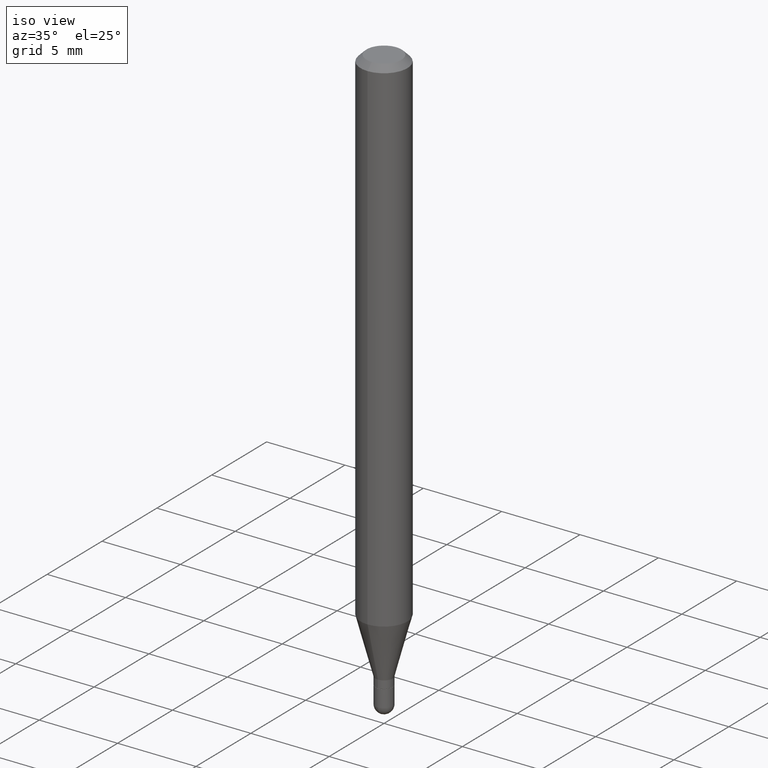
[diagram: clean part render]
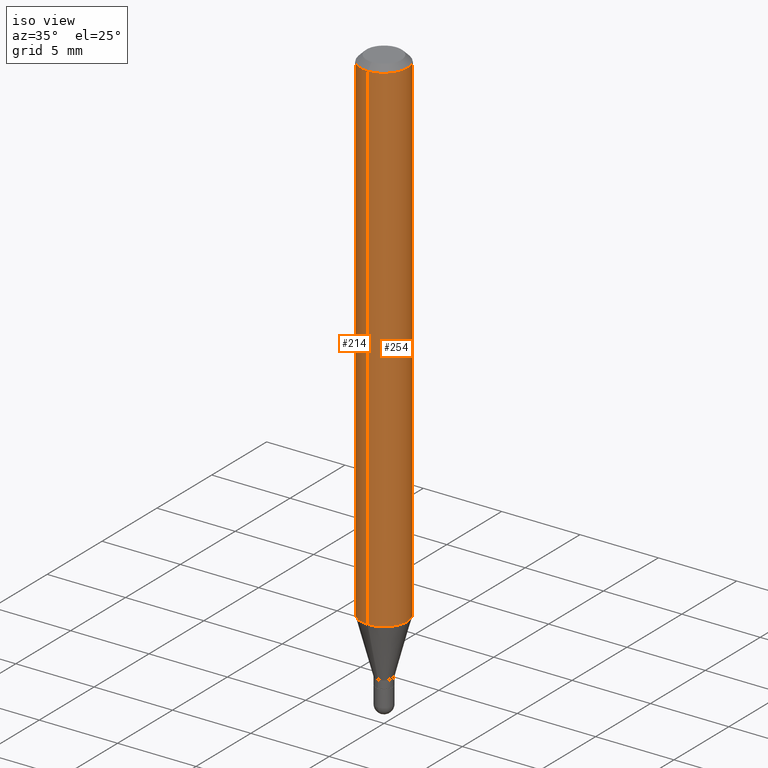
[diagram: same view with one multi-face feature highlighted, each face labeled with its STEP entity id]
A machine part, iso view. The highlighted faces form ONE feature: a constant-radius fillet chain: 2 tangent blend faces with common blend radius 1.4999 mm. The faces share edges in the B-rep.
Their STEP definitions:
[1] entity #214 (Cylinder):
#2 = DIRECTION ( 'NONE',  ( -6.982962677686265922E-15, -1.000000000000000000, 4.626330217890369336E-15 ) ) ;
#5 = DIRECTION ( 'NONE',  ( -6.982962677686265922E-15, -1.000000000000000000, 3.505890868245046092E-15 ) ) ;
#61 = EDGE_CURVE ( 'NONE', #104, #486, #247, .T. ) ;
#92 = AXIS2_PLACEMENT_3D ( 'NONE', #320, #398, #384 ) ;
#101 = EDGE_LOOP ( 'NONE', ( #245, #336, #184, #106 ) ) ;
#104 = VERTEX_POINT ( 'NONE', #356 ) ;
#106 = ORIENTED_EDGE ( 'NONE', *, *, #61, .F. ) ;
#108 = VERTEX_POINT ( 'NONE', #283 ) ;
#118 = CARTESIAN_POINT ( 'NONE',  ( 3.667410319511325366E-31, -5.238357471538720427E-17, -0.01500000000000009139 ) ) ;
#146 = AXIS2_PLACEMENT_3D ( 'NONE', #118, #326, #5 ) ;
#162 = CARTESIAN_POINT ( 'NONE',  ( 3.108793557569111606E-29, -4.440455400674538017E-15, -1.271521299796924964 ) ) ;
#168 = CARTESIAN_POINT ( 'NONE',  ( -4.123439461173739834E-16, -0.05904999999999999832, 2.062166724629063638E-16 ) ) ;
#178 = DIRECTION ( 'NONE',  ( -2.444940213007535554E-29, 3.492238314359125882E-15, 1.000000000000000000 ) ) ;
#184 = ORIENTED_EDGE ( 'NONE', *, *, #246, .T. ) ;
#201 = CARTESIAN_POINT ( 'NONE',  ( -4.123439461173429713E-16, -0.05905000000000445309, -1.271521299796924742 ) ) ;
#214 = ADVANCED_FACE ( 'NONE', ( #435 ), #395, .T. ) ;
#232 = VECTOR ( 'NONE', #178, 39.37007874015748143 ) ;
#233 = DIRECTION ( 'NONE',  ( -2.444940213007535554E-29, 3.492238314359125882E-15, 1.000000000000000000 ) ) ;
#243 = LINE ( 'NONE', #251, #232 ) ;
#245 = ORIENTED_EDGE ( 'NONE', *, *, #483, .F. ) ;
#246 = EDGE_CURVE ( 'NONE', #265, #486, #479, .T. ) ;
#247 = CIRCLE ( 'NONE', #146, 0.05904999999999999832 ) ;
#251 = CARTESIAN_POINT ( 'NONE',  ( 4.195754854663390985E-16, 0.05904999999999999832, -2.062166724629063638E-16 ) ) ;
#265 = VERTEX_POINT ( 'NONE', #201 ) ;
#274 = EDGE_CURVE ( 'NONE', #108, #265, #485, .T. ) ;
#283 = CARTESIAN_POINT ( 'NONE',  ( 4.195754854663700120E-16, 0.05904999999999554355, -1.271521299796925186 ) ) ;
#320 = CARTESIAN_POINT ( 'NONE',  ( 0.000000000000000000, 0.000000000000000000, 0.000000000000000000 ) ) ;
#326 = DIRECTION ( 'NONE',  ( -2.444940213007535554E-29, 3.492238314359125487E-15, 1.000000000000000000 ) ) ;
#336 = ORIENTED_EDGE ( 'NONE', *, *, #274, .T. ) ;
#351 = DIRECTION ( 'NONE',  ( -2.444940213007535554E-29, 3.492238314359125487E-15, 1.000000000000000000 ) ) ;
#356 = CARTESIAN_POINT ( 'NONE',  ( 4.195754854663703572E-16, 0.05904999999999994281, -0.01500000000000029955 ) ) ;
#377 = VECTOR ( 'NONE', #233, 39.37007874015748143 ) ;
#384 = DIRECTION ( 'NONE',  ( -6.982962677686265922E-15, -1.000000000000000000, 3.492238314359125487E-15 ) ) ;
#395 = CYLINDRICAL_SURFACE ( 'NONE', #92, 0.05904999999999999832 ) ;
#398 = DIRECTION ( 'NONE',  ( -2.444940213007535554E-29, 3.492238314359125487E-15, 1.000000000000000000 ) ) ;
#435 = FACE_OUTER_BOUND ( 'NONE', #101, .T. ) ;
#479 = LINE ( 'NONE', #168, #377 ) ;
#483 = EDGE_CURVE ( 'NONE', #108, #104, #243, .T. ) ;
#485 = CIRCLE ( 'NONE', #492, 0.05904999999999999832 ) ;
#486 = VERTEX_POINT ( 'NONE', #493 ) ;
#492 = AXIS2_PLACEMENT_3D ( 'NONE', #162, #351, #2 ) ;
#493 = CARTESIAN_POINT ( 'NONE',  ( -4.123439461173736383E-16, -0.05905000000000005383, -0.01499999999999988495 ) ) ;
[2] entity #254 (Cylinder):
#19 = AXIS2_PLACEMENT_3D ( 'NONE', #231, #393, #473 ) ;
#26 = ORIENTED_EDGE ( 'NONE', *, *, #246, .F. ) ;
#69 = CIRCLE ( 'NONE', #19, 0.05904999999999999832 ) ;
#71 = ORIENTED_EDGE ( 'NONE', *, *, #334, .T. ) ;
#90 = DIRECTION ( 'NONE',  ( -6.982962677686265922E-15, -1.000000000000000000, 4.626330217890369336E-15 ) ) ;
#104 = VERTEX_POINT ( 'NONE', #356 ) ;
#108 = VERTEX_POINT ( 'NONE', #283 ) ;
#119 = CYLINDRICAL_SURFACE ( 'NONE', #321, 0.05904999999999999832 ) ;
#121 = CIRCLE ( 'NONE', #182, 0.05904999999999999832 ) ;
#144 = ORIENTED_EDGE ( 'NONE', *, *, #483, .T. ) ;
#165 = EDGE_CURVE ( 'NONE', #486, #104, #69, .T. ) ;
#168 = CARTESIAN_POINT ( 'NONE',  ( -4.123439461173739834E-16, -0.05904999999999999832, 2.062166724629063638E-16 ) ) ;
#175 = EDGE_LOOP ( 'NONE', ( #71, #144, #209, #26 ) ) ;
#178 = DIRECTION ( 'NONE',  ( -2.444940213007535554E-29, 3.492238314359125882E-15, 1.000000000000000000 ) ) ;
#182 = AXIS2_PLACEMENT_3D ( 'NONE', #285, #199, #90 ) ;
#199 = DIRECTION ( 'NONE',  ( -2.444940213007535554E-29, 3.492238314359125487E-15, 1.000000000000000000 ) ) ;
#201 = CARTESIAN_POINT ( 'NONE',  ( -4.123439461173429713E-16, -0.05905000000000445309, -1.271521299796924742 ) ) ;
#203 = DIRECTION ( 'NONE',  ( -2.444940213007535554E-29, 3.492238314359125487E-15, 1.000000000000000000 ) ) ;
#209 = ORIENTED_EDGE ( 'NONE', *, *, #165, .F. ) ;
#231 = CARTESIAN_POINT ( 'NONE',  ( 3.667410319511325366E-31, -5.238357471538720427E-17, -0.01500000000000009139 ) ) ;
#232 = VECTOR ( 'NONE', #178, 39.37007874015748143 ) ;
#233 = DIRECTION ( 'NONE',  ( -2.444940213007535554E-29, 3.492238314359125882E-15, 1.000000000000000000 ) ) ;
#243 = LINE ( 'NONE', #251, #232 ) ;
#246 = EDGE_CURVE ( 'NONE', #265, #486, #479, .T. ) ;
#251 = CARTESIAN_POINT ( 'NONE',  ( 4.195754854663390985E-16, 0.05904999999999999832, -2.062166724629063638E-16 ) ) ;
#254 = ADVANCED_FACE ( 'NONE', ( #322 ), #119, .T. ) ;
#265 = VERTEX_POINT ( 'NONE', #201 ) ;
#273 = DIRECTION ( 'NONE',  ( -6.982962677686265922E-15, -1.000000000000000000, 3.492238314359125487E-15 ) ) ;
#283 = CARTESIAN_POINT ( 'NONE',  ( 4.195754854663700120E-16, 0.05904999999999554355, -1.271521299796925186 ) ) ;
#285 = CARTESIAN_POINT ( 'NONE',  ( 3.108793557569111606E-29, -4.440455400674538017E-15, -1.271521299796924964 ) ) ;
#321 = AXIS2_PLACEMENT_3D ( 'NONE', #394, #203, #273 ) ;
#322 = FACE_OUTER_BOUND ( 'NONE', #175, .T. ) ;
#334 = EDGE_CURVE ( 'NONE', #265, #108, #121, .T. ) ;
#356 = CARTESIAN_POINT ( 'NONE',  ( 4.195754854663703572E-16, 0.05904999999999994281, -0.01500000000000029955 ) ) ;
#377 = VECTOR ( 'NONE', #233, 39.37007874015748143 ) ;
#393 = DIRECTION ( 'NONE',  ( -2.444940213007535554E-29, 3.492238314359125487E-15, 1.000000000000000000 ) ) ;
#394 = CARTESIAN_POINT ( 'NONE',  ( 0.000000000000000000, 0.000000000000000000, 0.000000000000000000 ) ) ;
#473 = DIRECTION ( 'NONE',  ( -6.982962677686265922E-15, -1.000000000000000000, 3.505890868245046092E-15 ) ) ;
#479 = LINE ( 'NONE', #168, #377 ) ;
#483 = EDGE_CURVE ( 'NONE', #108, #104, #243, .T. ) ;
#486 = VERTEX_POINT ( 'NONE', #493 ) ;
#493 = CARTESIAN_POINT ( 'NONE',  ( -4.123439461173736383E-16, -0.05905000000000005383, -0.01499999999999988495 ) ) ;